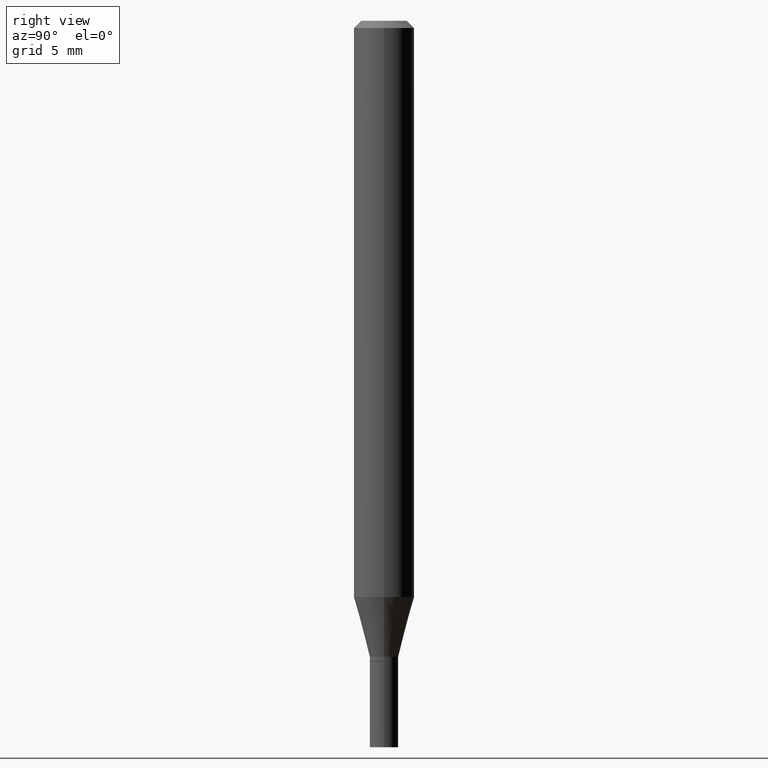
[diagram: clean part render]
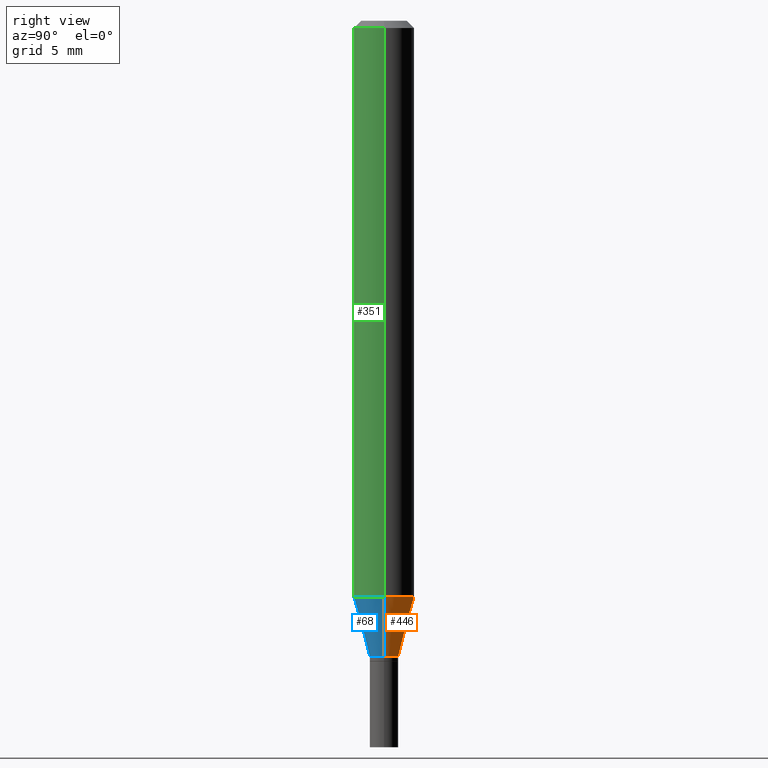
[diagram: same view with three faces highlighted in distinct colors, each labeled with its STEP entity id]
A machine part, right view with three faces highlighted in distinct colors.
Their STEP definitions:

[orange] entity #446 — the highlighted conical surface has half-angle 15 deg.
#8 = CONICAL_SURFACE ( 'NONE', #166, 0.02949999999999991865, 0.2617993877991501850 ) ;
#13 = DIRECTION ( 'NONE',  ( 1.000000000000000000, -6.982962677686269866E-15, 0.000000000000000000 ) ) ;
#28 = CARTESIAN_POINT ( 'NONE',  ( 2.909722286031829716E-29, -4.154312268143090689E-15, -1.189842323350227327 ) ) ;
#47 = CARTESIAN_POINT ( 'NONE',  ( 3.210900542521084585E-29, -4.584314997901050598E-15, -1.313000000000000167 ) ) ;
#51 = CARTESIAN_POINT ( 'NONE',  ( -0.02949999999999991865, -4.042463974572424662E-15, -1.313000000000000167 ) ) ;
#71 = EDGE_CURVE ( 'NONE', #377, #122, #242, .T. ) ;
#82 = DIRECTION ( 'NONE',  ( 1.000000000000000000, -6.982962677686269866E-15, 0.000000000000000000 ) ) ;
#85 = CARTESIAN_POINT ( 'NONE',  ( 0.02949999999999991865, -4.790312396892795119E-15, -1.313000000000000167 ) ) ;
#87 = CARTESIAN_POINT ( 'NONE',  ( 0.02949999999999991865, -4.790312396892795119E-15, -1.313000000000000167 ) ) ;
#113 = EDGE_CURVE ( 'NONE', #377, #268, #303, .T. ) ;
#116 = ORIENTED_EDGE ( 'NONE', *, *, #71, .T. ) ;
#122 = VERTEX_POINT ( 'NONE', #51 ) ;
#126 = ORIENTED_EDGE ( 'NONE', *, *, #452, .F. ) ;
#152 = ORIENTED_EDGE ( 'NONE', *, *, #395, .T. ) ;
#166 = AXIS2_PLACEMENT_3D ( 'NONE', #237, #199, #13 ) ;
#173 = AXIS2_PLACEMENT_3D ( 'NONE', #28, #450, #277 ) ;
#199 = DIRECTION ( 'NONE',  ( -2.445468806185136597E-29, 3.491481338843145583E-15, 1.000000000000000000 ) ) ;
#216 = VERTEX_POINT ( 'NONE', #247 ) ;
#217 = ORIENTED_EDGE ( 'NONE', *, *, #113, .F. ) ;
#228 = FACE_OUTER_BOUND ( 'NONE', #412, .T. ) ;
#229 = DIRECTION ( 'NONE',  ( 0.2588190451025214611, 1.565188264969620982E-15, 0.9659258262890679791 ) ) ;
#230 = DIRECTION ( 'NONE',  ( -0.2588190451025214611, 5.211531920934550253E-15, 0.9659258262890679791 ) ) ;
#237 = CARTESIAN_POINT ( 'NONE',  ( 3.210900542521084585E-29, -4.584314997901050598E-15, -1.313000000000000167 ) ) ;
#242 = CIRCLE ( 'NONE', #376, 0.02949999999999991865 ) ;
#247 = CARTESIAN_POINT ( 'NONE',  ( -0.06249999999999999306, -3.710223058293028073E-15, -1.189842323350227327 ) ) ;
#256 = CIRCLE ( 'NONE', #173, 0.06250000000000000000 ) ;
#268 = VERTEX_POINT ( 'NONE', #291 ) ;
#272 = CARTESIAN_POINT ( 'NONE',  ( -0.02949999999999991865, -4.374704890851822041E-15, -1.313000000000000167 ) ) ;
#277 = DIRECTION ( 'NONE',  ( 1.000000000000000000, -6.982962677686262766E-15, 0.000000000000000000 ) ) ;
#291 = CARTESIAN_POINT ( 'NONE',  ( 0.06249999999999999306, -4.590747435498482358E-15, -1.189842323350227327 ) ) ;
#303 = LINE ( 'NONE', #87, #457 ) ;
#339 = VECTOR ( 'NONE', #230, 39.37007874015748143 ) ;
#342 = LINE ( 'NONE', #272, #339 ) ;
#376 = AXIS2_PLACEMENT_3D ( 'NONE', #47, #397, #82 ) ;
#377 = VERTEX_POINT ( 'NONE', #85 ) ;
#395 = EDGE_CURVE ( 'NONE', #122, #216, #342, .T. ) ;
#397 = DIRECTION ( 'NONE',  ( -2.445468806185136597E-29, 3.491481338843145583E-15, 1.000000000000000000 ) ) ;
#412 = EDGE_LOOP ( 'NONE', ( #116, #152, #126, #217 ) ) ;
#446 = ADVANCED_FACE ( 'NONE', ( #228 ), #8, .T. ) ;
#450 = DIRECTION ( 'NONE',  ( -2.445468806185136597E-29, 3.491481338843145583E-15, 1.000000000000000000 ) ) ;
#452 = EDGE_CURVE ( 'NONE', #268, #216, #256, .T. ) ;
#457 = VECTOR ( 'NONE', #229, 39.37007874015748143 ) ;

[blue] entity #68 — the highlighted conical surface has half-angle 15 deg.
#11 = DIRECTION ( 'NONE',  ( 1.000000000000000000, -6.982962677686262766E-15, 0.000000000000000000 ) ) ;
#21 = EDGE_CURVE ( 'NONE', #216, #268, #359, .T. ) ;
#27 = ORIENTED_EDGE ( 'NONE', *, *, #21, .F. ) ;
#31 = ORIENTED_EDGE ( 'NONE', *, *, #215, .T. ) ;
#51 = CARTESIAN_POINT ( 'NONE',  ( -0.02949999999999991865, -4.042463974572424662E-15, -1.313000000000000167 ) ) ;
#68 = ADVANCED_FACE ( 'NONE', ( #258 ), #155, .T. ) ;
#85 = CARTESIAN_POINT ( 'NONE',  ( 0.02949999999999991865, -4.790312396892795119E-15, -1.313000000000000167 ) ) ;
#87 = CARTESIAN_POINT ( 'NONE',  ( 0.02949999999999991865, -4.790312396892795119E-15, -1.313000000000000167 ) ) ;
#89 = ORIENTED_EDGE ( 'NONE', *, *, #113, .T. ) ;
#99 = DIRECTION ( 'NONE',  ( -2.445468806185136597E-29, 3.491481338843145583E-15, 1.000000000000000000 ) ) ;
#113 = EDGE_CURVE ( 'NONE', #377, #268, #303, .T. ) ;
#121 = ORIENTED_EDGE ( 'NONE', *, *, #395, .F. ) ;
#122 = VERTEX_POINT ( 'NONE', #51 ) ;
#147 = AXIS2_PLACEMENT_3D ( 'NONE', #266, #185, #11 ) ;
#155 = CONICAL_SURFACE ( 'NONE', #222, 0.02949999999999991865, 0.2617993877991501850 ) ;
#180 = AXIS2_PLACEMENT_3D ( 'NONE', #356, #99, #461 ) ;
#185 = DIRECTION ( 'NONE',  ( -2.445468806185136597E-29, 3.491481338843145583E-15, 1.000000000000000000 ) ) ;
#215 = EDGE_CURVE ( 'NONE', #122, #377, #401, .T. ) ;
#216 = VERTEX_POINT ( 'NONE', #247 ) ;
#222 = AXIS2_PLACEMENT_3D ( 'NONE', #430, #370, #335 ) ;
#229 = DIRECTION ( 'NONE',  ( 0.2588190451025214611, 1.565188264969620982E-15, 0.9659258262890679791 ) ) ;
#230 = DIRECTION ( 'NONE',  ( -0.2588190451025214611, 5.211531920934550253E-15, 0.9659258262890679791 ) ) ;
#235 = EDGE_LOOP ( 'NONE', ( #121, #31, #89, #27 ) ) ;
#247 = CARTESIAN_POINT ( 'NONE',  ( -0.06249999999999999306, -3.710223058293028073E-15, -1.189842323350227327 ) ) ;
#258 = FACE_OUTER_BOUND ( 'NONE', #235, .T. ) ;
#266 = CARTESIAN_POINT ( 'NONE',  ( 2.909722286031829716E-29, -4.154312268143090689E-15, -1.189842323350227327 ) ) ;
#268 = VERTEX_POINT ( 'NONE', #291 ) ;
#272 = CARTESIAN_POINT ( 'NONE',  ( -0.02949999999999991865, -4.374704890851822041E-15, -1.313000000000000167 ) ) ;
#291 = CARTESIAN_POINT ( 'NONE',  ( 0.06249999999999999306, -4.590747435498482358E-15, -1.189842323350227327 ) ) ;
#303 = LINE ( 'NONE', #87, #457 ) ;
#335 = DIRECTION ( 'NONE',  ( 1.000000000000000000, -6.982962677686269866E-15, 0.000000000000000000 ) ) ;
#339 = VECTOR ( 'NONE', #230, 39.37007874015748143 ) ;
#342 = LINE ( 'NONE', #272, #339 ) ;
#356 = CARTESIAN_POINT ( 'NONE',  ( 3.210900542521084585E-29, -4.584314997901050598E-15, -1.313000000000000167 ) ) ;
#359 = CIRCLE ( 'NONE', #147, 0.06250000000000000000 ) ;
#370 = DIRECTION ( 'NONE',  ( -2.445468806185136597E-29, 3.491481338843145583E-15, 1.000000000000000000 ) ) ;
#377 = VERTEX_POINT ( 'NONE', #85 ) ;
#395 = EDGE_CURVE ( 'NONE', #122, #216, #342, .T. ) ;
#401 = CIRCLE ( 'NONE', #180, 0.02949999999999991865 ) ;
#430 = CARTESIAN_POINT ( 'NONE',  ( 3.210900542521084585E-29, -4.584314997901050598E-15, -1.313000000000000167 ) ) ;
#457 = VECTOR ( 'NONE', #229, 39.37007874015748143 ) ;
#461 = DIRECTION ( 'NONE',  ( 1.000000000000000000, -6.982962677686269866E-15, 0.000000000000000000 ) ) ;

[green] entity #351 — the highlighted cylindrical surface (edge-blend (fillet) strip) has radius 1.5875 mm, axis along (-0, 0, 1).
#11 = DIRECTION ( 'NONE',  ( 1.000000000000000000, -6.982962677686262766E-15, 0.000000000000000000 ) ) ;
#21 = EDGE_CURVE ( 'NONE', #216, #268, #359, .T. ) ;
#40 = LINE ( 'NONE', #48, #324 ) ;
#48 = CARTESIAN_POINT ( 'NONE',  ( 0.06250000000000000000, -4.364351673553916694E-16, 3.047610484872459871E-30 ) ) ;
#80 = ORIENTED_EDGE ( 'NONE', *, *, #371, .T. ) ;
#103 = DIRECTION ( 'NONE',  ( -2.445468806185136597E-29, 3.491481338843145583E-15, 1.000000000000000000 ) ) ;
#108 = ORIENTED_EDGE ( 'NONE', *, *, #226, .F. ) ;
#118 = CIRCLE ( 'NONE', #443, 0.06250000000000000000 ) ;
#147 = AXIS2_PLACEMENT_3D ( 'NONE', #266, #185, #11 ) ;
#154 = EDGE_LOOP ( 'NONE', ( #353, #231, #80, #108 ) ) ;
#171 = CARTESIAN_POINT ( 'NONE',  ( 3.668203209277705088E-31, -5.237222008264718399E-17, -0.01499999999999999944 ) ) ;
#182 = DIRECTION ( 'NONE',  ( -2.445468806185136877E-29, 3.491481338843145188E-15, 1.000000000000000000 ) ) ;
#185 = DIRECTION ( 'NONE',  ( -2.445468806185136597E-29, 3.491481338843145583E-15, 1.000000000000000000 ) ) ;
#208 = CARTESIAN_POINT ( 'NONE',  ( -0.06250000000000000000, 4.440892098500626162E-16, -3.074334431409316114E-30 ) ) ;
#216 = VERTEX_POINT ( 'NONE', #247 ) ;
#226 = EDGE_CURVE ( 'NONE', #244, #311, #118, .T. ) ;
#231 = ORIENTED_EDGE ( 'NONE', *, *, #21, .T. ) ;
#244 = VERTEX_POINT ( 'NONE', #387 ) ;
#246 = DIRECTION ( 'NONE',  ( -2.445468806185136877E-29, 3.491481338843145188E-15, 1.000000000000000000 ) ) ;
#247 = CARTESIAN_POINT ( 'NONE',  ( -0.06249999999999999306, -3.710223058293028073E-15, -1.189842323350227327 ) ) ;
#249 = DIRECTION ( 'NONE',  ( 1.000000000000000000, -6.982962677686266711E-15, 0.000000000000000000 ) ) ;
#266 = CARTESIAN_POINT ( 'NONE',  ( 2.909722286031829716E-29, -4.154312268143090689E-15, -1.189842323350227327 ) ) ;
#268 = VERTEX_POINT ( 'NONE', #291 ) ;
#291 = CARTESIAN_POINT ( 'NONE',  ( 0.06249999999999999306, -4.590747435498482358E-15, -1.189842323350227327 ) ) ;
#299 = CYLINDRICAL_SURFACE ( 'NONE', #383, 0.06250000000000000000 ) ;
#301 = EDGE_CURVE ( 'NONE', #216, #244, #455, .T. ) ;
#311 = VERTEX_POINT ( 'NONE', #385 ) ;
#324 = VECTOR ( 'NONE', #182, 39.37007874015748143 ) ;
#348 = VECTOR ( 'NONE', #246, 39.37007874015748143 ) ;
#351 = ADVANCED_FACE ( 'NONE', ( #428 ), #299, .T. ) ;
#353 = ORIENTED_EDGE ( 'NONE', *, *, #301, .F. ) ;
#359 = CIRCLE ( 'NONE', #147, 0.06250000000000000000 ) ;
#371 = EDGE_CURVE ( 'NONE', #268, #311, #40, .T. ) ;
#383 = AXIS2_PLACEMENT_3D ( 'NONE', #435, #103, #400 ) ;
#385 = CARTESIAN_POINT ( 'NONE',  ( 0.06250000000000000000, -4.888073874380388472E-16, -0.01499999999999999944 ) ) ;
#387 = CARTESIAN_POINT ( 'NONE',  ( -0.06250000000000000000, -1.659253034262806268E-15, -0.01499999999999999944 ) ) ;
#400 = DIRECTION ( 'NONE',  ( 1.000000000000000000, -6.982962677686266711E-15, 4.876176775795935793E-29 ) ) ;
#428 = FACE_OUTER_BOUND ( 'NONE', #154, .T. ) ;
#435 = CARTESIAN_POINT ( 'NONE',  ( 0.000000000000000000, 0.000000000000000000, 0.000000000000000000 ) ) ;
#443 = AXIS2_PLACEMENT_3D ( 'NONE', #171, #459, #249 ) ;
#455 = LINE ( 'NONE', #208, #348 ) ;
#459 = DIRECTION ( 'NONE',  ( -2.445468806185136597E-29, 3.491481338843145583E-15, 1.000000000000000000 ) ) ;